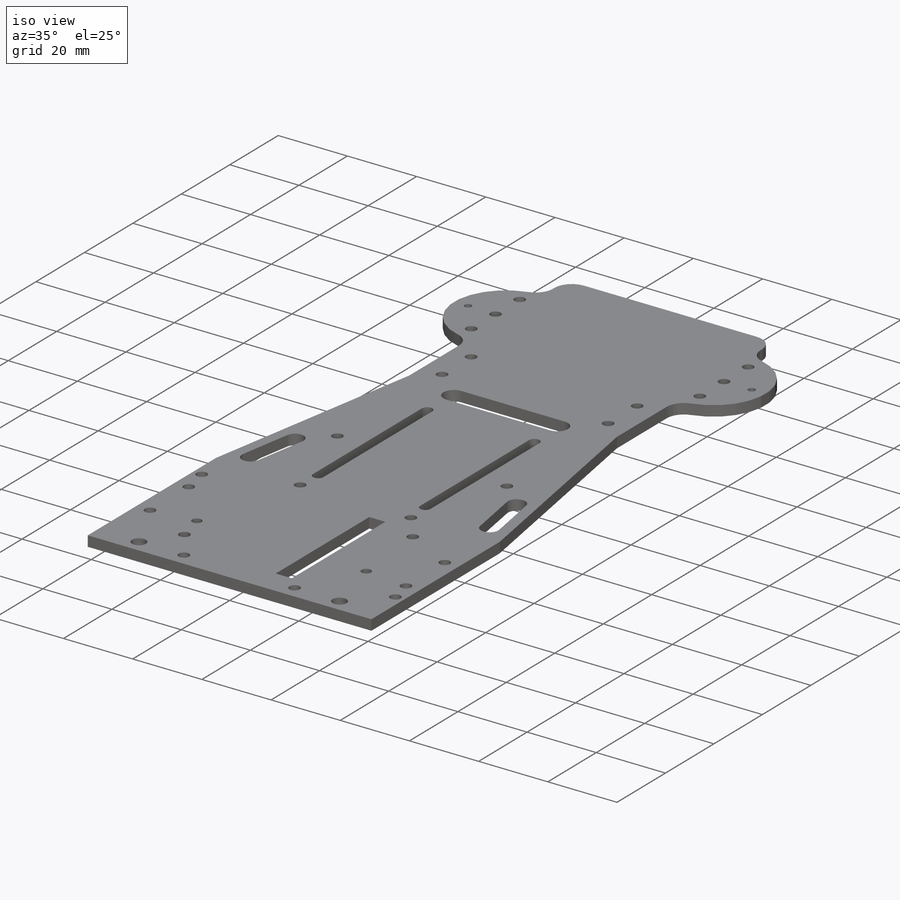
[diagram: iso view]
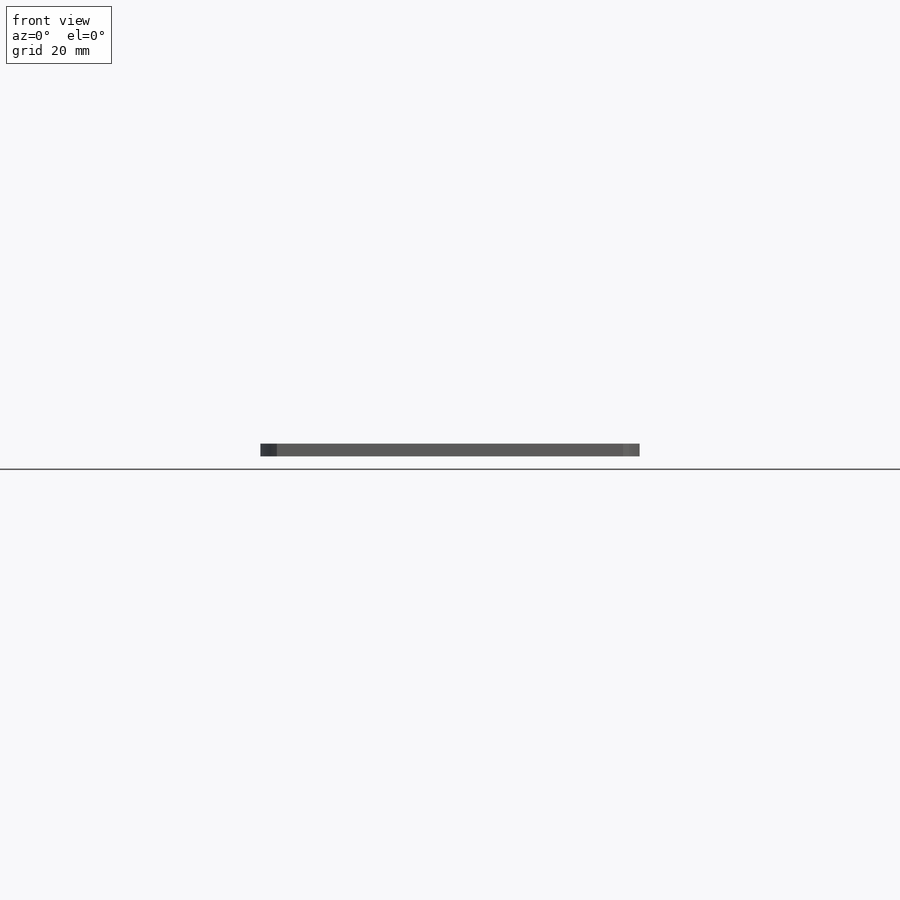
[diagram: front view]
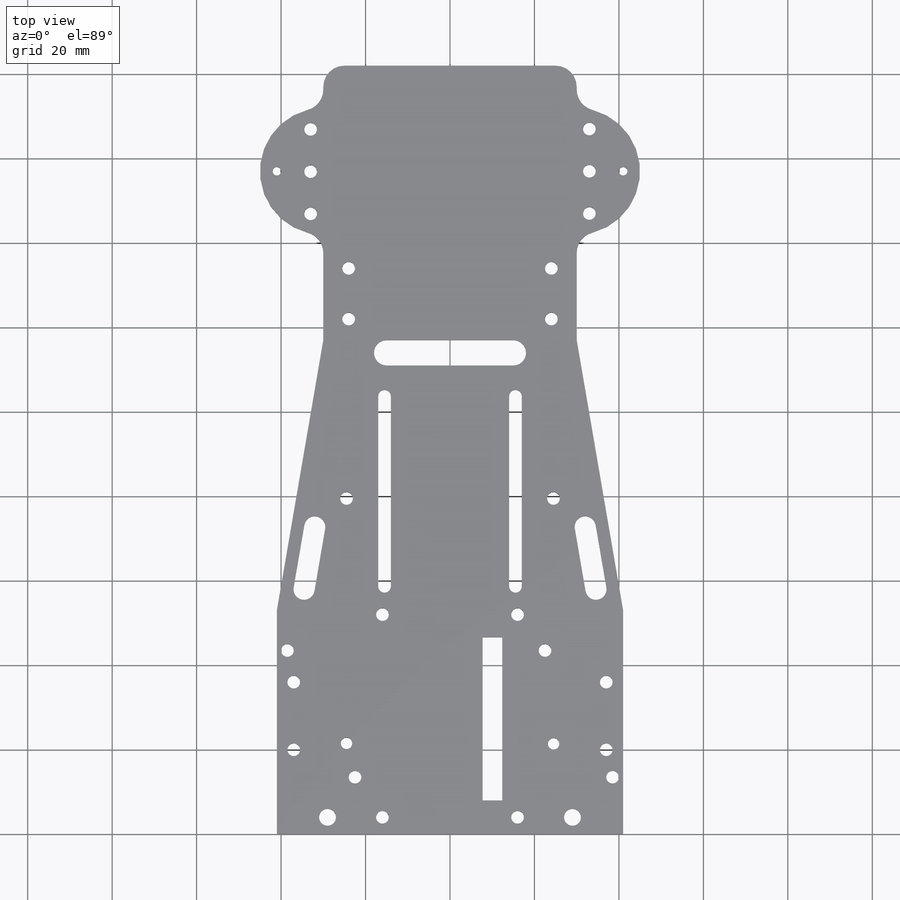
[diagram: top view]
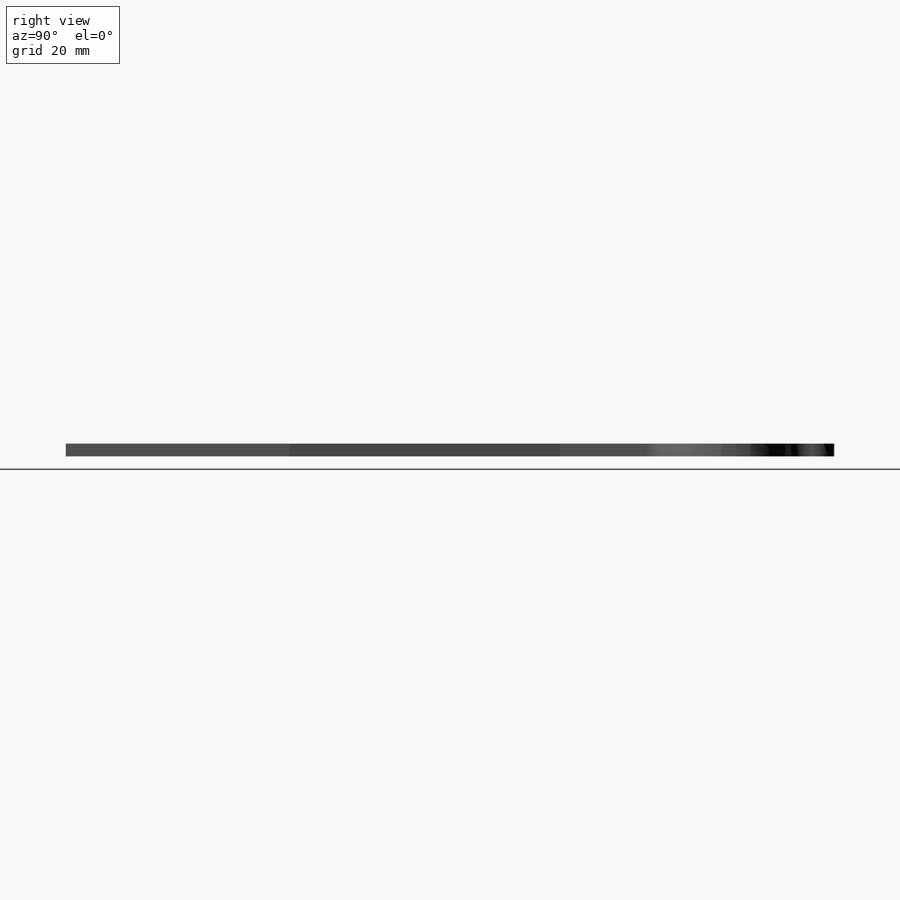
[diagram: right view]
SOLIDWORKS PART (.sldprt)
format: sldprt  version: not decoded by parser v0  size: 683,008 bytes
history: native  units: mm
features: sketch x20, cut_extrude x15, extrude x5, fillet x2, material x1, plane x1, pattern_linear x1 (+13 scaffold rows collapsed)
feature tree (58):
  scaffold x13  (default folders/planes/origin — collapsed)
  material  "Material <not specified>"
  sketch  "Sketch1"  dims[c1.D10=15.0mm c1.D11=15.0mm c1.D14=10.0mm c1.D16=5.0mm c1.D17=5.0mm c1.D18=5.0mm c1.D19=5.0mm c1.D1=82.0mm c1.D2=53.0mm c1.D3=53.0mm c1.D4=~74.456367mm c1.D5=41.0mm c1.D6=60.0mm c1.D7=30.0mm c2.D4=182.0mm c2.D8=65.0mm c2.D9=65.0mm c2.D10=~9.153454mm c2.D12=10.0mm c2.D13=10.0mm c2.D14=60.0mm c2.D15=30.0mm c2.D20=~20.572614mm]
  extrude  "Boss-Extrude1"  Depth=3mm
  sketch  "Sketch2"  dims[c1.D1=14.0mm c1.D2=0.0mm c1.D3=3.0mm c1.D4=16.0mm c1.D5=8.0mm c2.D5=~150.255119deg c3.D5=~18.439089mm c4.D5=~139.398705deg c5.D5=12.0mm c6.D5=~139.398705deg c7.D5=14.0mm c8.D5=135.0deg c9.D5=~19.79899mm]
  extrude  "Boss-Extrude2"  Depth=60mm
  plane  "Plane1"
  sketch  "Sketch3"  dims[c1.D2=10.0mm c1.D3=10.0mm c1.D1=78.0mm c2.D2=28.0mm c2.D3=28.0mm c3.D3=~245.282663deg c4.D3=~30.824047mm c4.D2=28.0mm c5.D3=~29.410882mm c5.D4=28.0mm]
  extrude  "Boss-Extrude3"  Depth=3mm
  sketch  "Sketch4"  dims[D1=3.0mm D2=134.0mm D3=6.0mm]
  cut_extrude  "Cut-Extrude1"  [1 undecoded]
  pattern_linear  "LPattern1"  Count1=2 Count2=2 Spacing1=48mm Spacing2=12mm
  sketch  "Sketch6"
  cut_extrude  "Cut-Extrude2"  [1 undecoded]
  sketch  "Sketch8"
  extrude  "Boss-Extrude4"  Depth=19mm
  sketch  "Sketch9"  dims[D1=8.0mm]
  extrude  "Boss-Extrude5"  [1 undecoded]
  sketch  "Sketch12"  dims[D1=3.0mm D2=3.0mm]
  cut_extrude  "Cut-Extrude4"  [1 undecoded]
  sketch  "Sketch13"  dims[c1.D1=2.0mm c1.D2=2.0mm c1.D3=2.0mm c1.D4=2.0mm c1.D5=3.0mm c1.D6=3.0mm c1.D7=2.0mm c1.D8=3.0mm c1.D9=3.0mm c1.D10=3.0mm c1.D11=3.0mm c1.D12=3.0mm c1.D13=3.0mm c1.D14=3.0mm c1.D15=3.0mm c1.D16=3.0mm c2.D3=82.0mm c2.D4=11.0mm c2.D5=11.0mm c2.D7=8.0mm c2.D8=8.0mm c2.D13=10.0mm c2.D14=10.0mm c2.D15=10.0mm c2.D16=10.0mm]
  cut_extrude  "Cut-Extrude5"  [1 undecoded]
  sketch  "Sketch14"  dims[c1.D1=3.0mm c1.D2=2.7mm c2.D1=3.0mm c2.D2=2.7mm c2.D3=2.7mm c3.D1=0.0mm]
  cut_extrude  "Cut-Extrude6"  [1 undecoded]
  sketch  "Sketch15"  dims[c1.D1=~2.623107mm c1.D2=~1.626011mm c2.D1=3.0mm c2.D2=3.0mm c2.D3=3.0mm c2.D4=3.0mm c2.D5=3.0mm c2.D6=3.0mm c3.D1=0.0mm c3.D2=2.5mm c3.D3=13.5mm c3.D5=18.5mm c3.D6=43.5mm]
  cut_extrude  "Cut-Extrude7"  [1 undecoded]
  sketch  "Sketch16"  dims[c1.D1=1.5mm c1.D2=3.0mm c2.D1=3.0mm c2.D3=3.0mm c2.D4=3.0mm c2.D5=3.0mm c2.D6=3.0mm c3.D1=0.0mm c3.D3=13.5mm c3.D4=18.5mm c3.D5=2.5mm c3.D6=43.5mm]
  cut_extrude  "Cut-Extrude8"  [1 undecoded]
  sketch  "Sketch17"  dims[c1.D2=2.5mm c1.D4=2.5mm c1.D1=~9.206002mm c2.D1=360.0deg c2.D2=~2.205395mm c3.D1=3.0mm c3.D3=15.0mm c3.D4=58.0mm c3.D5=41.0mm]
  cut_extrude  "Cut-Extrude9"  [1 undecoded]
  sketch  "Sketch19"  dims[D1=3.0mm D2=3.0mm]
  cut_extrude  "Cut-Extrude10"  [1 undecoded]
  sketch  "Sketch20"
  cut_extrude  "Cut-Extrude11"  [1 undecoded]
  fillet  "Fillet1"  Radius=5mm
  fillet  "Fillet2"  Radius=5mm
  sketch  "Sketch21"  dims[c1.D1=~4.750088mm c1.D2=3.0mm c1.D3=3.0mm c1.D6=3.0mm c1.D7=3.0mm c1.D8=3.0mm c1.D9=3.0mm c2.D1=4.0mm c2.D3=0.0mm c2.D4=82.0mm c2.D6=4.0mm c2.D7=16.0mm c2.D8=74.0mm c2.D9=4.0mm c3.D4=2.0 c3.D5=2.0]
  cut_extrude  "Cut-Extrude12"  [1 undecoded]
  sketch  "Sketch22"  dims[c1.D1=1.5mm c1.D4=1.5mm c1.D5=1.5mm c1.D7=1.5mm c1.D2=0.0mm c1.D3=50.0mm c2.D4=5.0mm c2.D6=0.0mm c2.D7=5.0mm c2.D8=45.0mm c2.D9=58.7mm c2.D3=45.0mm]
  cut_extrude  "Cut-Extrude13"  [1 undecoded]
  sketch  "Sketch23"  dims[D1=3.0mm D2=3.0mm]
  cut_extrude  "Cut-Extrude14"  [1 undecoded]
  sketch  "Sketch24"  dims[c1.D2=~2.191476mm c1.D4=3.0mm c1.D1=5.0mm c2.D2=5.0mm c2.2=2.0mm c2.D3=65.0mm c2.D1=25.0mm c3.D2=25.0mm c3.D1=46.0mm c4.D2=17.5mm c4.D1=15.0mm c5.D2=15.0mm]
  cut_extrude  "Cut-Extrude15"  [1 undecoded]
  sketch  "Sketch25"  dims[D1=4.0mm D2=4.0mm]
  cut_extrude  "Cut-Extrude16"  [1 undecoded]
decode coverage: 24 of 43 modeling features carry decoded parameters
note: ~ marks probable driven/reference dimensions
note: 16 parameter values undecoded
summary: no parameter record found for 16 features
note: suppression state not decoded; provenance and decode notes live in map.json
